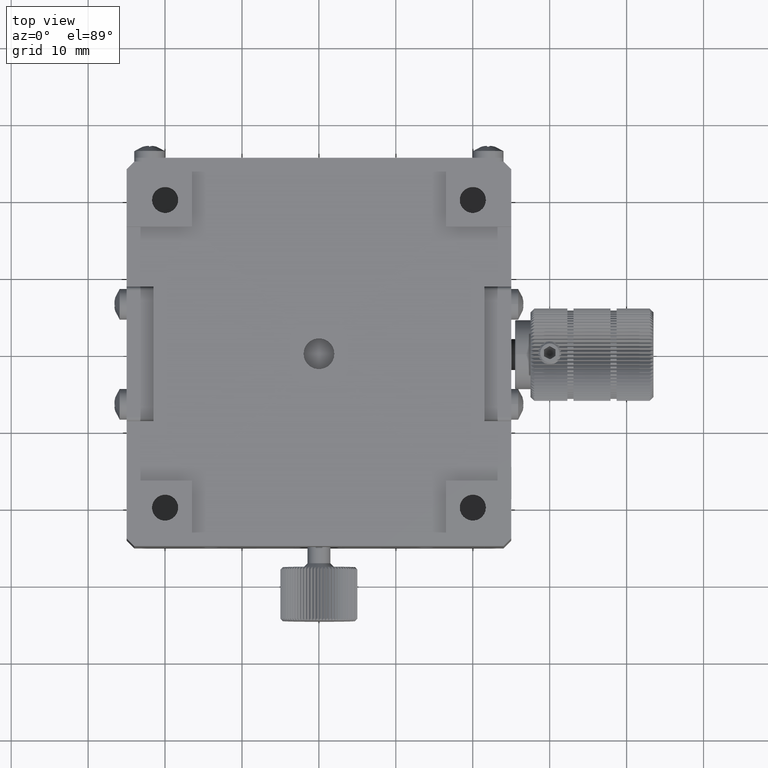
[diagram: clean part render]
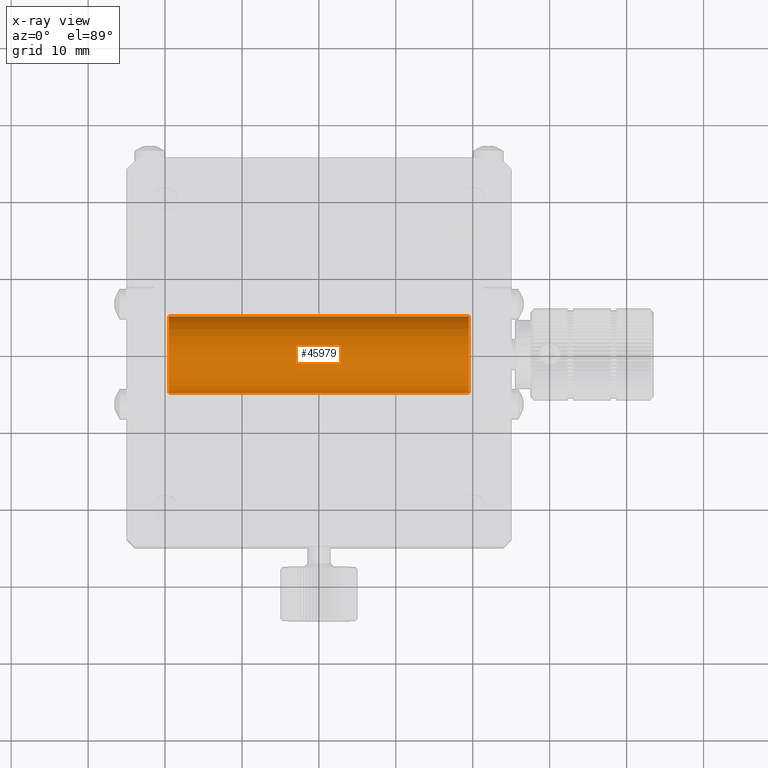
[diagram: x-ray — body ghosted, one internal face saturated and labeled with its STEP entity id]
A machine part, top view, then the same camera in x-ray: the body is ghosted and one INTERNAL B-rep face — a face not visible from any outside direction — is saturated and labeled: STEP entity #45979.
In plain terms, the highlighted cylindrical surface (bore or boss wall) has radius 5 mm, axis along (-1, 0, 0).
Its self-contained STEP definition (entity closure, byte-faithful):
#779 = ORIENTED_EDGE ( 'NONE', *, *, #16595, .T. ) ;
#1029 = EDGE_CURVE ( 'NONE', #19280, #19280, #24480, .T. ) ;
#1045 = CARTESIAN_POINT ( 'NONE',  ( -12.49999999999999289, 4.250000000000003553, 58.86608656178677990 ) ) ;
#1082 = CARTESIAN_POINT ( 'NONE',  ( -16.75000237122790026, -0.3017607879647296043, 56.49999798445628585 ) ) ;
#1440 = CARTESIAN_POINT ( 'NONE',  ( -15.65253362187282349, -2.862323367246700112, 57.39386193728627461 ) ) ;
#2880 = VECTOR ( 'NONE', #39882, 1000.000000000000000 ) ;
#3147 = CARTESIAN_POINT ( 'NONE',  ( 16.62679808939098791, -1.026431750840323120, 56.60431859846399760 ) ) ;
#3430 = ORIENTED_EDGE ( 'NONE', *, *, #1029, .F. ) ;
#3827 = CARTESIAN_POINT ( 'NONE',  ( 16.75000237122791447, 0.3017607879647346558, 56.49999798445627164 ) ) ;
#6299 = CARTESIAN_POINT ( 'NONE',  ( 12.80280312609236049, 4.249999999999997335, 58.86608656178681542 ) ) ;
#6631 = CARTESIAN_POINT ( 'NONE',  ( 15.07533446782667497, 3.390795316889318123, 57.81978222463077088 ) ) ;
#6996 = CARTESIAN_POINT ( 'NONE',  ( -15.27645843665095882, -3.228411659822019164, 57.67500026098326060 ) ) ;
#7057 = DIRECTION ( 'NONE',  ( 6.938893903907232322E-16, 0.000000000000000000, 1.000000000000000000 ) ) ;
#7362 = CARTESIAN_POINT ( 'NONE',  ( -13.65912104928592363, 4.098797548366784227, 58.63448914668191492 ) ) ;
#7679 = CARTESIAN_POINT ( 'NONE',  ( 15.07708558342246086, -3.389522056236376812, 57.81857378206482423 ) ) ;
#7700 = CARTESIAN_POINT ( 'NONE',  ( -16.62679808939097370, 1.026431750840324675, 56.60431859846399760 ) ) ;
#8374 = CARTESIAN_POINT ( 'NONE',  ( 16.44833696594301387, -1.578950511035979831, 56.75385923230440000 ) ) ;
#8468 = CARTESIAN_POINT ( 'NONE',  ( 19.49999999999993960, -1.224646799147352073E-15, 61.49999999999998579 ) ) ;
#9059 = CARTESIAN_POINT ( 'NONE',  ( 14.41564008011647502, -3.803187516038401217, 58.24975333921420173 ) ) ;
#10217 = FACE_OUTER_BOUND ( 'NONE', #58646, .T. ) ;
#10670 = CARTESIAN_POINT ( 'NONE',  ( 12.50000000000000711, -4.250000000000003553, 58.86608656178679411 ) ) ;
#10906 = CARTESIAN_POINT ( 'NONE',  ( 25.00000000000002842, -1.224646799147352073E-15, 61.49999999999998579 ) ) ;
#10934 = DIRECTION ( 'NONE',  ( 1.000000000000000000, -0.000000000000000000, -4.417994208435642243E-16 ) ) ;
#12573 = CARTESIAN_POINT ( 'NONE',  ( 14.64366440385536450, 3.678932375820193723, 58.10781009828101418 ) ) ;
#12596 = CARTESIAN_POINT ( 'NONE',  ( -15.07708558342243954, 3.389522056236379921, 57.81857378206481712 ) ) ;
#13262 = CARTESIAN_POINT ( 'NONE',  ( 13.65912104928593784, -4.098797548366784227, 58.63448914668190781 ) ) ;
#14298 = CARTESIAN_POINT ( 'NONE',  ( 15.28202444947540073, -3.223593734357400820, 57.67094335388778603 ) ) ;
#14509 = VERTEX_POINT ( 'NONE', #33456 ) ;
#15794 = CYLINDRICAL_SURFACE ( 'NONE', #52406, 5.000000000000004441 ) ;
#16236 = VECTOR ( 'NONE', #43517, 1000.000000000000000 ) ;
#16595 = EDGE_CURVE ( 'NONE', #56654, #14509, #41064, .T. ) ;
#17125 = CARTESIAN_POINT ( 'NONE',  ( -16.71723767974181385, -0.6030717777322720519, 56.52792714818993147 ) ) ;
#18135 = CARTESIAN_POINT ( 'NONE',  ( 16.59416608345148347, 1.177536962327273118, 56.63187811213018108 ) ) ;
#19254 = DIRECTION ( 'NONE',  ( 6.938893903907222461E-16, 0.000000000000000000, 1.000000000000000000 ) ) ;
#19280 = VERTEX_POINT ( 'NONE', #56837 ) ;
#20743 = EDGE_CURVE ( 'NONE', #60917, #25137, #43085, .T. ) ;
#21013 = FACE_OUTER_BOUND ( 'NONE', #52283, .T. ) ;
#21741 = CARTESIAN_POINT ( 'NONE',  ( 12.80248550542797048, -4.250000000000004441, 58.86608656178680832 ) ) ;
#22327 = CARTESIAN_POINT ( 'NONE',  ( 13.91804228433608159, 4.015393087367059799, 58.51588386334246650 ) ) ;
#22351 = CARTESIAN_POINT ( 'NONE',  ( -16.44833696594299965, 1.578950511035983606, 56.75385923230442842 ) ) ;
#22382 = FACE_BOUND ( 'NONE', #26995, .T. ) ;
#23065 = CARTESIAN_POINT ( 'NONE',  ( -12.49999999999999645, -4.249999999999994671, 58.86608656178679411 ) ) ;
#23389 = CARTESIAN_POINT ( 'NONE',  ( -15.65709007706912459, 2.857271223902067891, 57.39034885709437361 ) ) ;
#23705 = CARTESIAN_POINT ( 'NONE',  ( 16.13959655721355801, -2.211212508347475403, 57.00829830976095280 ) ) ;
#23729 = CARTESIAN_POINT ( 'NONE',  ( -16.50449467120218472, -1.451912344961913126, 56.70736896384067904 ) ) ;
#24480 = CIRCLE ( 'NONE', #48925, 5.000000000000004441 ) ;
#24740 = CARTESIAN_POINT ( 'NONE',  ( 16.27802003398646136, -1.966942468535437527, 56.89490663093538814 ) ) ;
#25137 = VERTEX_POINT ( 'NONE', #10670 ) ;
#26238 = ORIENTED_EDGE ( 'NONE', *, *, #20743, .T. ) ;
#26995 = EDGE_LOOP ( 'NONE', ( #779, #35584, #26238, #57253 ) ) ;
#27586 = CARTESIAN_POINT ( 'NONE',  ( -16.71823494587354730, 0.5958962832137220111, 56.52707915631398095 ) ) ;
#28607 = CARTESIAN_POINT ( 'NONE',  ( 12.50000000000000711, 4.249999999999996447, 58.86608656178678700 ) ) ;
#28630 = CARTESIAN_POINT ( 'NONE',  ( -12.49999999999999289, 4.250000000000003553, 58.86608656178679411 ) ) ;
#28938 = CARTESIAN_POINT ( 'NONE',  ( 14.64426551093836260, -3.678634976808243362, 58.10744882496718589 ) ) ;
#28959 = CARTESIAN_POINT ( 'NONE',  ( -16.58860616401679522, 1.169135577481083432, 56.63650266468268057 ) ) ;
#29832 = EDGE_CURVE ( 'NONE', #25137, #56654, #62123, .T. ) ;
#30320 = CARTESIAN_POINT ( 'NONE',  ( 13.92416372091951615, -4.013186999719257742, 58.51291634811078524 ) ) ;
#33456 = CARTESIAN_POINT ( 'NONE',  ( -12.49999999999999289, 4.250000000000003553, 58.86608656178679411 ) ) ;
#33802 = CARTESIAN_POINT ( 'NONE',  ( 16.13786903911605464, 2.213941638393218003, 57.00969340198940927 ) ) ;
#33825 = CARTESIAN_POINT ( 'NONE',  ( -16.27802003398644359, 1.966942468535441968, 56.89490663093539524 ) ) ;
#33900 = CARTESIAN_POINT ( 'NONE',  ( 12.50000000000000711, 4.249999999999996447, 58.86608656178678700 ) ) ;
#35584 = ORIENTED_EDGE ( 'NONE', *, *, #51483, .T. ) ;
#38020 = CARTESIAN_POINT ( 'NONE',  ( -13.65852527923554760, -4.099180715856291179, 58.63500959093217801 ) ) ;
#38184 = CIRCLE ( 'NONE', #47044, 4.999999999999997335 ) ;
#38271 = EDGE_CURVE ( 'NONE', #57313, #57313, #38184, .T. ) ;
#39044 = CARTESIAN_POINT ( 'NONE',  ( -15.82792521719573386, -2.657168130307725917, 57.25690579298246519 ) ) ;
#39882 = DIRECTION ( 'NONE',  ( -1.000000000000000000, 3.122502256758252277E-16, -0.000000000000000000 ) ) ;
#40745 = CARTESIAN_POINT ( 'NONE',  ( 15.82884728029693910, -2.656106104961327485, 57.25618742280532558 ) ) ;
#41064 = B_SPLINE_CURVE_WITH_KNOTS ( 'NONE', 3,
 ( #23065, #54682, #44260, #38020, #59193, #65451, #49104, #60581, #6996, #1440, #39044, #55379, #44930, #23729, #65116, #17125, #1082, #53990, #27586, #7700, #28959, #66133, #22351, #33825, #48761, #59888, #23389, #60229, #12596, #50151, #43558, #55040, #7362, #64755, #65781, #28630 ),
 .UNSPECIFIED., .F., .F.,
 ( 4, 2, 2, 2, 2, 2, 2, 2, 2, 2, 2, 2, 2, 2, 2, 2, 2, 4 ),
 ( 1.734723475976806902E-18, 0.0008928408399373606542, 0.001785681679874719574, 0.002678522519812078385, 0.003571363359749437413, 0.004464204199686793405, 0.005357045039624149831, 0.006249885879561503654, 0.007142726719498860080, 0.008035567559436214771, 0.008481987979404892117, 0.008928408399373571197, 0.009821249239310931092, 0.01071409007924829272, 0.01160693091918565435, 0.01249977175912301772, 0.01339261259906038282, 0.01428545343899774792 ),
 .UNSPECIFIED. ) ;
#41071 = CARTESIAN_POINT ( 'NONE',  ( 16.58860616401680943, -1.169135577481084320, 56.63650266468267347 ) ) ;
#42274 = CARTESIAN_POINT ( 'NONE',  ( 12.50000000000000711, -4.250000000000003553, 58.86608656178679411 ) ) ;
#42922 = DIRECTION ( 'NONE',  ( 6.938893903907222461E-16, 0.000000000000000000, 1.000000000000000000 ) ) ;
#43085 = B_SPLINE_CURVE_WITH_KNOTS ( 'NONE', 3,
 ( #28607, #6299, #48741, #60210, #22327, #54307, #12573, #6631, #43890, #44571, #65093, #33802, #55020, #65760, #18135, #56380, #3827, #45260, #61241, #3147, #41071, #50127, #8374, #24740, #23705, #40745, #55360, #14298, #7679, #28938, #9059, #30320, #13262, #51498, #21741, #42274 ),
 .UNSPECIFIED., .F., .F.,
 ( 4, 2, 2, 2, 2, 2, 2, 2, 2, 2, 2, 2, 2, 2, 2, 2, 2, 4 ),
 ( -0.007122046129262349888, -0.006231786258515641629, -0.005341526387768933369, -0.004451266517022225977, -0.003561006646275517284, -0.002670746775528809458, -0.001780486904782101198, -0.0008902270340353920716, 3.283671131705523383E-08, 0.0008902927074580261821, 0.001335422642831380312, 0.001780552578204734442, 0.002670812448951442701, 0.003561072319698154430, 0.004451332190444862690, 0.005341592061191572684, 0.006231851931938282678, 0.007122111802684992672 ),
 .UNSPECIFIED. ) ;
#43517 = DIRECTION ( 'NONE',  ( 1.000000000000000000, -3.122502256758252770E-16, -0.000000000000000000 ) ) ;
#43558 = CARTESIAN_POINT ( 'NONE',  ( -14.41564008011646258, 3.803187516038400329, 58.24975333921422305 ) ) ;
#43890 = CARTESIAN_POINT ( 'NONE',  ( 15.27645843665096947, 3.228411659822021829, 57.67500026098323929 ) ) ;
#44260 = CARTESIAN_POINT ( 'NONE',  ( -13.09484741799076168, -4.218011369494588436, 58.81302536816720306 ) ) ;
#44571 = CARTESIAN_POINT ( 'NONE',  ( 15.65253362187283770, 2.862323367246702777, 57.39386193728626750 ) ) ;
#44930 = CARTESIAN_POINT ( 'NONE',  ( -16.27429549768778827, -1.974517795633470740, 56.89797423073957816 ) ) ;
#45260 = CARTESIAN_POINT ( 'NONE',  ( 16.74999762850971052, -0.3018275770331918517, 56.50000201576673931 ) ) ;
#45979 = ADVANCED_FACE ( 'NONE', ( #10217, #22382, #21013 ), #15794, .F. ) ;
#47044 = AXIS2_PLACEMENT_3D ( 'NONE', #58910, #10934, #7057 ) ;
#47456 = DIRECTION ( 'NONE',  ( -1.000000000000000000, 0.000000000000000000, 4.417994208435642243E-16 ) ) ;
#48741 = CARTESIAN_POINT ( 'NONE',  ( 13.09484741799077057, 4.218011369494590213, 58.81302536816718884 ) ) ;
#48761 = CARTESIAN_POINT ( 'NONE',  ( -16.13959655721354025, 2.211212508347483841, 57.00829830976098123 ) ) ;
#48780 = CARTESIAN_POINT ( 'NONE',  ( -12.49999999999999645, -4.249999999999994671, 58.86608656178679411 ) ) ;
#48925 = AXIS2_PLACEMENT_3D ( 'NONE', #8468, #67215, #19254 ) ;
#49104 = CARTESIAN_POINT ( 'NONE',  ( -14.64366440385534673, -3.678932375820191503, 58.10781009828100707 ) ) ;
#50127 = CARTESIAN_POINT ( 'NONE',  ( 16.49929036117772441, -1.445425532484900133, 56.71134367915053076 ) ) ;
#50151 = CARTESIAN_POINT ( 'NONE',  ( -14.64426551093834483, 3.678634976808246027, 58.10744882496721431 ) ) ;
#51483 = EDGE_CURVE ( 'NONE', #14509, #60917, #59851, .T. ) ;
#51498 = CARTESIAN_POINT ( 'NONE',  ( 13.10155916089146544, -4.216850664339777843, 58.81123369040027882 ) ) ;
#52283 = EDGE_LOOP ( 'NONE', ( #3430 ) ) ;
#52406 = AXIS2_PLACEMENT_3D ( 'NONE', #10906, #47456, #42922 ) ;
#53990 = CARTESIAN_POINT ( 'NONE',  ( -16.74999762850969987, 0.3018275770331945163, 56.50000201576673931 ) ) ;
#54307 = CARTESIAN_POINT ( 'NONE',  ( 14.41088801071693837, 3.805618553762128098, 58.25260132007224456 ) ) ;
#54682 = CARTESIAN_POINT ( 'NONE',  ( -12.80280312609234628, -4.249999999999994671, 58.86608656178680121 ) ) ;
#55020 = CARTESIAN_POINT ( 'NONE',  ( 16.27429549768780603, 1.974517795633472073, 56.89797423073956395 ) ) ;
#55040 = CARTESIAN_POINT ( 'NONE',  ( -13.92416372091950727, 4.013186999719256853, 58.51291634811077813 ) ) ;
#55360 = CARTESIAN_POINT ( 'NONE',  ( 15.65709007706914058, -2.857271223902068336, 57.39034885709435940 ) ) ;
#55379 = CARTESIAN_POINT ( 'NONE',  ( -16.13786903911604753, -2.213941638393214451, 57.00969340198940927 ) ) ;
#56380 = CARTESIAN_POINT ( 'NONE',  ( 16.71723767974182806, 0.6030717777322743833, 56.52792714818991016 ) ) ;
#56654 = VERTEX_POINT ( 'NONE', #48780 ) ;
#56837 = CARTESIAN_POINT ( 'NONE',  ( 19.49999999999994316, -1.224646799147352073E-15, 66.49999999999998579 ) ) ;
#56968 = CARTESIAN_POINT ( 'NONE',  ( -19.49999999999992539, -1.224646799147352073E-15, 66.50000000000000000 ) ) ;
#57253 = ORIENTED_EDGE ( 'NONE', *, *, #29832, .T. ) ;
#57313 = VERTEX_POINT ( 'NONE', #56968 ) ;
#57898 = ORIENTED_EDGE ( 'NONE', *, *, #38271, .F. ) ;
#58646 = EDGE_LOOP ( 'NONE', ( #57898 ) ) ;
#58910 = CARTESIAN_POINT ( 'NONE',  ( -19.49999999999992539, -1.224646799147352073E-15, 61.50000000000000711 ) ) ;
#59193 = CARTESIAN_POINT ( 'NONE',  ( -13.91804228433607094, -4.015393087367058023, 58.51588386334248071 ) ) ;
#59851 = LINE ( 'NONE', #1045, #16236 ) ;
#59888 = CARTESIAN_POINT ( 'NONE',  ( -15.82884728029691779, 2.656106104961333703, 57.25618742280536111 ) ) ;
#60210 = CARTESIAN_POINT ( 'NONE',  ( 13.65852527923555471, 4.099180715856292956, 58.63500959093217091 ) ) ;
#60229 = CARTESIAN_POINT ( 'NONE',  ( -15.28202444947538829, 3.223593734357399931, 57.67094335388780735 ) ) ;
#60581 = CARTESIAN_POINT ( 'NONE',  ( -15.07533446782665720, -3.390795316889316791, 57.81978222463074957 ) ) ;
#60917 = VERTEX_POINT ( 'NONE', #33900 ) ;
#61241 = CARTESIAN_POINT ( 'NONE',  ( 16.71823494587356862, -0.5958962832137200127, 56.52707915631396673 ) ) ;
#62123 = LINE ( 'NONE', #66290, #2880 ) ;
#64755 = CARTESIAN_POINT ( 'NONE',  ( -13.10155916089145656, 4.216850664339778731, 58.81123369040030013 ) ) ;
#65093 = CARTESIAN_POINT ( 'NONE',  ( 15.82792521719574452, 2.657168130307730358, 57.25690579298245098 ) ) ;
#65116 = CARTESIAN_POINT ( 'NONE',  ( -16.59416608345146926, -1.177536962327270009, 56.63187811213019529 ) ) ;
#65451 = CARTESIAN_POINT ( 'NONE',  ( -14.41088801071691883, -3.805618553762125877, 58.25260132007224456 ) ) ;
#65760 = CARTESIAN_POINT ( 'NONE',  ( 16.50449467120220248, 1.451912344961914680, 56.70736896384067194 ) ) ;
#65781 = CARTESIAN_POINT ( 'NONE',  ( -12.80248550542795627, 4.250000000000004441, 58.86608656178681542 ) ) ;
#66133 = CARTESIAN_POINT ( 'NONE',  ( -16.49929036117771375, 1.445425532484900133, 56.71134367915055208 ) ) ;
#66290 = CARTESIAN_POINT ( 'NONE',  ( -12.49999999999999645, -4.249999999999994671, 58.86608656178678700 ) ) ;
#67215 = DIRECTION ( 'NONE',  ( -1.000000000000000000, 0.000000000000000000, 4.417994208435642243E-16 ) ) ;